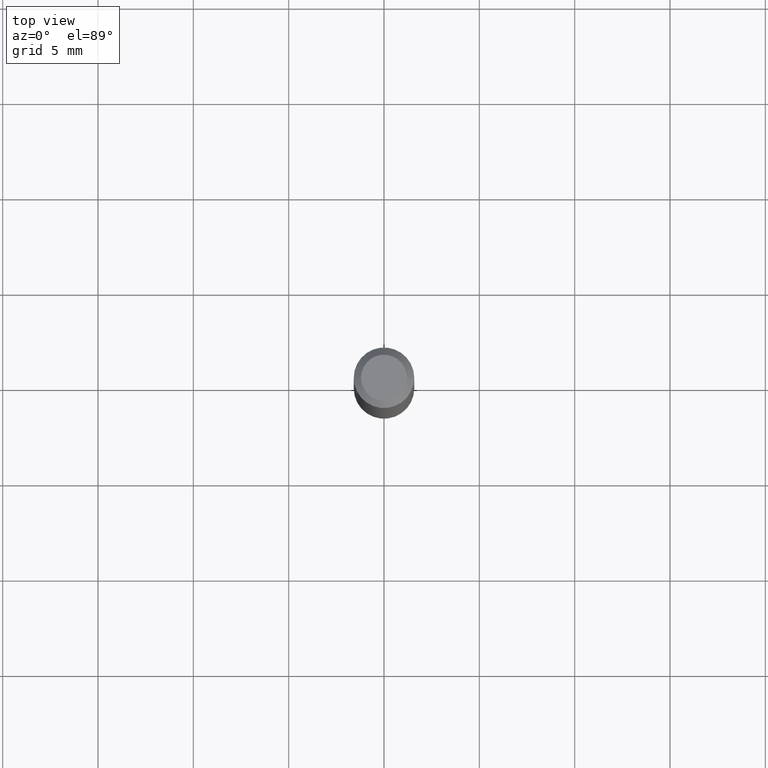
[diagram: clean part render]
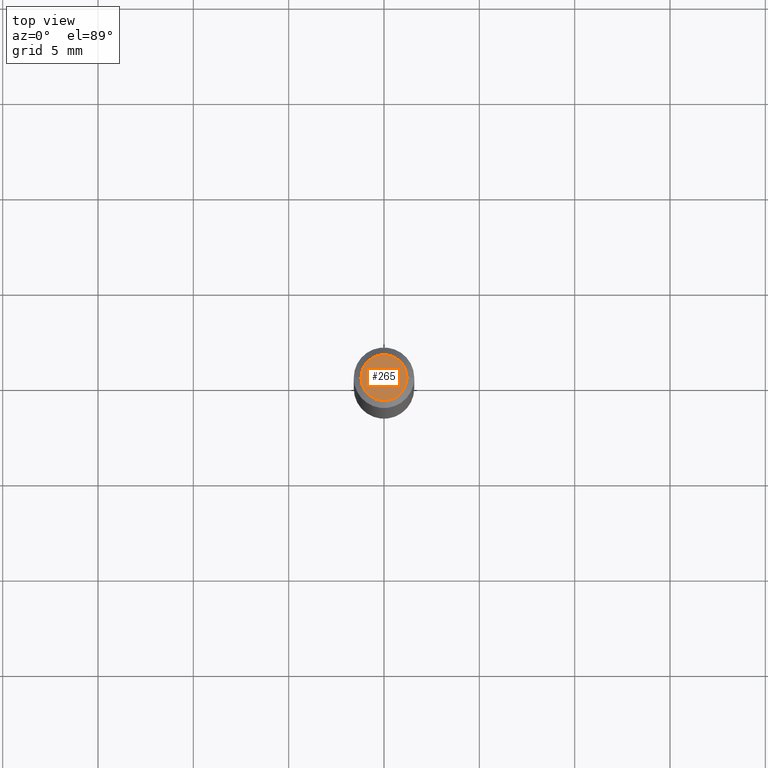
[diagram: same view with one face highlighted and labeled with its STEP entity id]
A machine part, top view. The second image highlights one B-rep face of the part: STEP entity #265.
In plain terms, the highlighted planar face has unit normal (0, -0, -1).
Its self-contained STEP definition (entity closure, byte-faithful):
#9 = VERTEX_POINT ( 'NONE', #450 ) ;
#28 = EDGE_CURVE ( 'NONE', #9, #115, #453, .T. ) ;
#66 = EDGE_LOOP ( 'NONE', ( #238, #410 ) ) ;
#115 = VERTEX_POINT ( 'NONE', #378 ) ;
#131 = AXIS2_PLACEMENT_3D ( 'NONE', #148, #325, #282 ) ;
#148 = CARTESIAN_POINT ( 'NONE',  ( -6.680649051745406845E-45, 9.538196290434862081E-31, 2.731847993664263218E-16 ) ) ;
#168 = DIRECTION ( 'NONE',  ( -2.445468806185136597E-29, 3.491481338843145583E-15, 1.000000000000000000 ) ) ;
#189 = DIRECTION ( 'NONE',  ( 2.438088387897960049E-29, -3.491481338843145188E-15, -1.000000000000000000 ) ) ;
#219 = AXIS2_PLACEMENT_3D ( 'NONE', #504, #189, #342 ) ;
#222 = FACE_OUTER_BOUND ( 'NONE', #66, .T. ) ;
#233 = CIRCLE ( 'NONE', #241, 0.04750000000000000749 ) ;
#238 = ORIENTED_EDGE ( 'NONE', *, *, #28, .T. ) ;
#241 = AXIS2_PLACEMENT_3D ( 'NONE', #425, #168, #313 ) ;
#265 = ADVANCED_FACE ( 'NONE', ( #222 ), #339, .F. ) ;
#282 = DIRECTION ( 'NONE',  ( 1.000000000000000000, -6.982962677686266711E-15, 4.852736867747365086E-29 ) ) ;
#313 = DIRECTION ( 'NONE',  ( 1.000000000000000000, -6.982962677686266711E-15, 4.852736867747365086E-29 ) ) ;
#325 = DIRECTION ( 'NONE',  ( -2.445468806185136597E-29, 3.491481338843145583E-15, 1.000000000000000000 ) ) ;
#339 = PLANE ( 'NONE',  #219 ) ;
#342 = DIRECTION ( 'NONE',  ( -1.000000000000000000, 6.982962677686265922E-15, -4.876176775795935793E-29 ) ) ;
#378 = CARTESIAN_POINT ( 'NONE',  ( 0.04750000000000000749, -4.035134999187568762E-16, 2.731847993664288856E-16 ) ) ;
#395 = EDGE_CURVE ( 'NONE', #115, #9, #233, .T. ) ;
#410 = ORIENTED_EDGE ( 'NONE', *, *, #395, .T. ) ;
#425 = CARTESIAN_POINT ( 'NONE',  ( -6.680649051745406845E-45, 9.538196290434862081E-31, 2.731847993664263218E-16 ) ) ;
#450 = CARTESIAN_POINT ( 'NONE',  ( -0.04750000000000000749, 3.578768372314221353E-16, 2.731847993664239060E-16 ) ) ;
#453 = CIRCLE ( 'NONE', #131, 0.04750000000000000749 ) ;
#504 = CARTESIAN_POINT ( 'NONE',  ( 3.316907271900976589E-16, 0.04750000000000000749, -2.925296391183627249E-17 ) ) ;